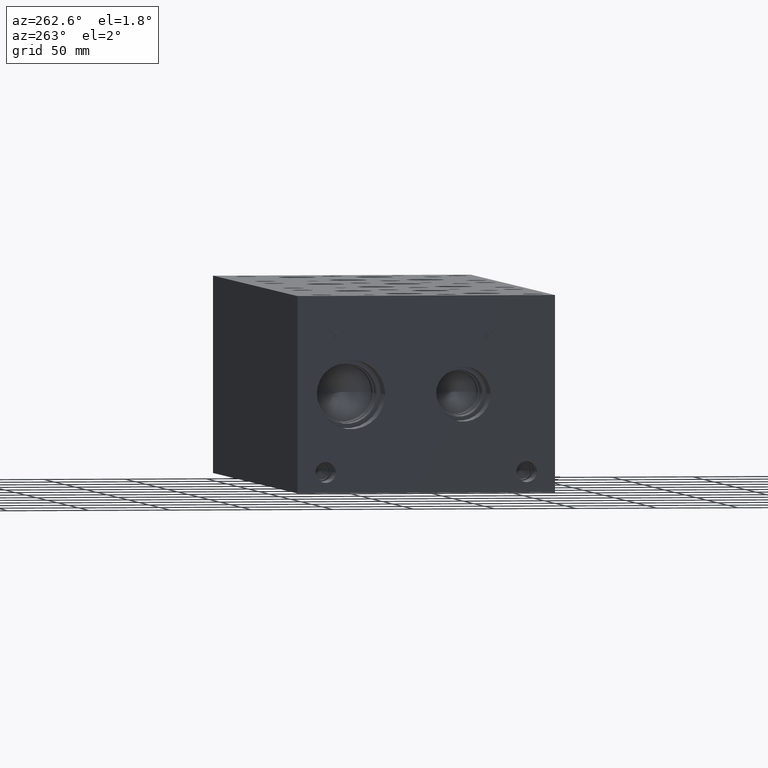
[diagram: clean part render]
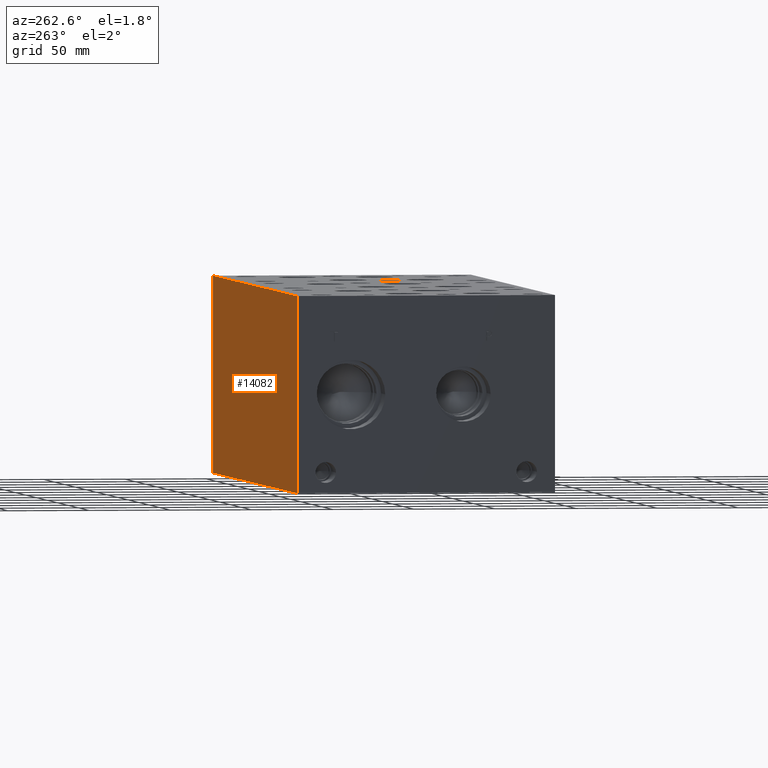
[diagram: same view with one face highlighted and labeled with its STEP entity id]
A machine part, auxiliary view. The second image highlights one B-rep face of the part: STEP entity #14082.
In plain terms, the highlighted planar face has unit normal (0, 1, 0).
Its self-contained STEP definition (entity closure, byte-faithful):
#1900=FACE_OUTER_BOUND('',#2729,.T.);
#2729=EDGE_LOOP('',(#12349,#12350,#12351,#12352));
#3700=LINE('',#22625,#4949);
#3760=LINE('',#22898,#5009);
#4020=LINE('',#24343,#5269);
#4021=LINE('',#24344,#5270);
#4949=VECTOR('',#16525,10.);
#5009=VECTOR('',#16639,10.);
#5269=VECTOR('',#17985,10.);
#5270=VECTOR('',#17986,10.);
#6128=VERTEX_POINT('',#22622);
#6129=VERTEX_POINT('',#22624);
#6186=VERTEX_POINT('',#22894);
#6187=VERTEX_POINT('',#22896);
#7893=EDGE_CURVE('',#6128,#6129,#3700,.T.);
#7977=EDGE_CURVE('',#6186,#6187,#3760,.T.);
#8569=EDGE_CURVE('',#6128,#6186,#4020,.T.);
#8570=EDGE_CURVE('',#6129,#6187,#4021,.T.);
#12349=ORIENTED_EDGE('',*,*,#8569,.T.);
#12350=ORIENTED_EDGE('',*,*,#7977,.T.);
#12351=ORIENTED_EDGE('',*,*,#8570,.F.);
#12352=ORIENTED_EDGE('',*,*,#7893,.F.);
#12843=PLANE('',#14977);
#14082=ADVANCED_FACE('',(#1900),#12843,.T.);
#14977=AXIS2_PLACEMENT_3D('',#24342,#17983,#17984);
#16525=DIRECTION('',(0.,0.,1.));
#16639=DIRECTION('',(0.,0.,1.));
#17983=DIRECTION('center_axis',(0.,1.,0.));
#17984=DIRECTION('ref_axis',(-1.,0.,0.));
#17985=DIRECTION('',(-1.,0.,0.));
#17986=DIRECTION('',(-1.,0.,0.));
#22622=CARTESIAN_POINT('',(400.05,158.75,0.));
#22624=CARTESIAN_POINT('',(400.05,158.75,120.65));
#22625=CARTESIAN_POINT('',(400.05,158.75,0.));
#22894=CARTESIAN_POINT('',(0.,158.75,0.));
#22896=CARTESIAN_POINT('',(0.,158.75,120.65));
#22898=CARTESIAN_POINT('',(0.,158.75,0.));
#24342=CARTESIAN_POINT('Origin',(400.05,158.75,0.));
#24343=CARTESIAN_POINT('',(400.05,158.75,0.));
#24344=CARTESIAN_POINT('',(400.05,158.75,120.65));